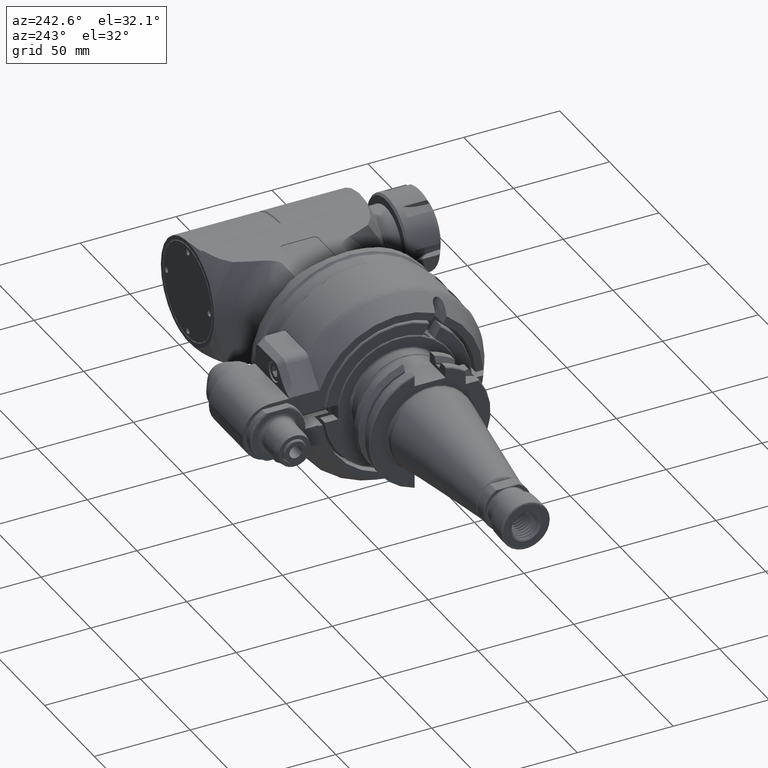
[diagram: clean part render]
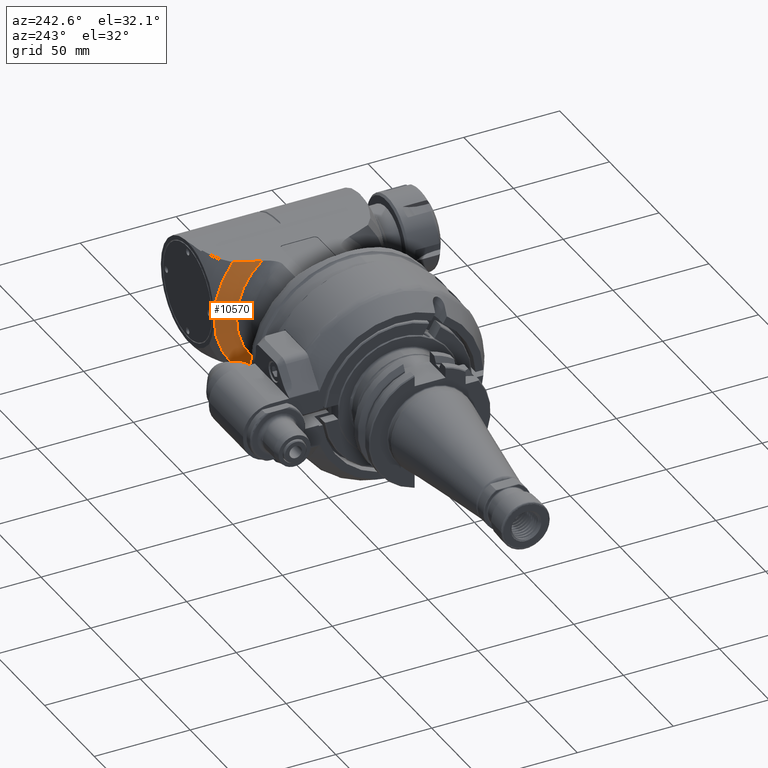
[diagram: same view with one face highlighted and labeled with its STEP entity id]
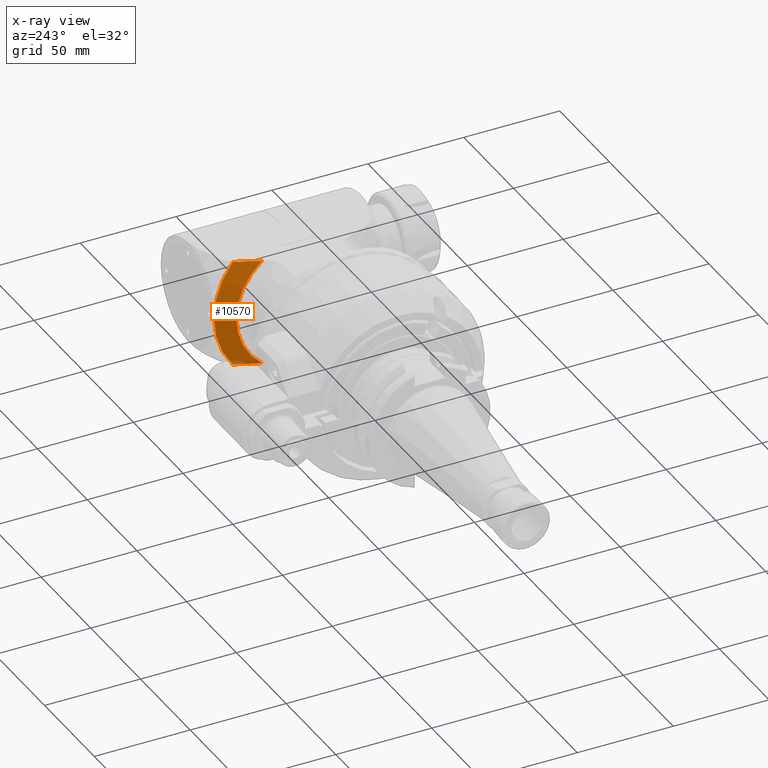
[diagram: x-ray of the same camera — body ghosted, the highlighted face saturated]
A machine part, auxiliary view. The second image highlights one B-rep face of the part: STEP entity #10570.
The next image is the same camera in x-ray: the body ghosted, the highlighted face saturated — about 3% of this face is hidden behind the body in this view.
In plain terms, the highlighted conical surface has half-angle 60 deg.
Its self-contained STEP definition (entity closure, byte-faithful):
#343=(
BOUNDED_CURVE()
B_SPLINE_CURVE(2,(#55237,#55238,#55239),.UNSPECIFIED.,.F.,.F.)
B_SPLINE_CURVE_WITH_KNOTS((3,3),(11.1418606523245,12.5466422600916),
 .UNSPECIFIED.)
CURVE()
GEOMETRIC_REPRESENTATION_ITEM()
RATIONAL_B_SPLINE_CURVE((1.58677165235107,1.50405038971858,1.39114226877562))
REPRESENTATION_ITEM('')
);
#361=(
BOUNDED_CURVE()
B_SPLINE_CURVE(2,(#55623,#55624,#55625),.UNSPECIFIED.,.F.,.F.)
B_SPLINE_CURVE_WITH_KNOTS((3,3),(-3.54863226084856,-2.12423992536637),
 .UNSPECIFIED.)
CURVE()
GEOMETRIC_REPRESENTATION_ITEM()
RATIONAL_B_SPLINE_CURVE((1.60728382094121,1.52349322203514,1.40912553984427))
REPRESENTATION_ITEM('')
);
#752=CONICAL_SURFACE('',#11577,40.5,1.0471975511966);
#1248=FACE_OUTER_BOUND('',#1934,.T.);
#1934=EDGE_LOOP('',(#9148,#9149,#9150,#9151,#9152));
#2480=CIRCLE('',#11576,36.);
#2481=CIRCLE('',#11578,45.);
#2482=CIRCLE('',#11579,45.);
#4902=VERTEX_POINT('',#55232);
#4903=VERTEX_POINT('',#55236);
#4945=VERTEX_POINT('',#55523);
#4962=VERTEX_POINT('',#55607);
#4963=VERTEX_POINT('',#55622);
#6319=EDGE_CURVE('',#4903,#4902,#343,.T.);
#6396=EDGE_CURVE('',#4962,#4963,#361,.T.);
#6424=EDGE_CURVE('',#4903,#4962,#2480,.T.);
#6425=EDGE_CURVE('',#4902,#4945,#2481,.T.);
#6426=EDGE_CURVE('',#4945,#4963,#2482,.T.);
#9148=ORIENTED_EDGE('',*,*,#6424,.F.);
#9149=ORIENTED_EDGE('',*,*,#6319,.T.);
#9150=ORIENTED_EDGE('',*,*,#6425,.T.);
#9151=ORIENTED_EDGE('',*,*,#6426,.T.);
#9152=ORIENTED_EDGE('',*,*,#6396,.F.);
#10570=ADVANCED_FACE('',(#1248),#752,.T.);
#11576=AXIS2_PLACEMENT_3D('',#55742,#13974,#13975);
#11577=AXIS2_PLACEMENT_3D('',#55743,#13976,#13977);
#11578=AXIS2_PLACEMENT_3D('',#55744,#13978,#13979);
#11579=AXIS2_PLACEMENT_3D('',#55745,#13980,#13981);
#13974=DIRECTION('center_axis',(-1.,0.,0.));
#13975=DIRECTION('ref_axis',(0.,0.628539361054693,0.777777777777791));
#13976=DIRECTION('center_axis',(1.,0.,0.));
#13977=DIRECTION('ref_axis',(0.,1.,0.));
#13978=DIRECTION('center_axis',(-1.,0.,0.));
#13979=DIRECTION('ref_axis',(0.,0.782840664613806,0.622222222222105));
#13980=DIRECTION('center_axis',(-1.,0.,0.));
#13981=DIRECTION('ref_axis',(0.,1.,0.));
#55232=CARTESIAN_POINT('',(63.5055535658784,35.2278300211639,27.9999999663396));
#55236=CARTESIAN_POINT('',(58.30940107676,22.62741699797,28.));
#55237=CARTESIAN_POINT('Ctrl Pts',(58.3094010767572,22.627416997971,28.));
#55238=CARTESIAN_POINT('Ctrl Pts',(60.3416369571526,28.2276005599083,28.));
#55239=CARTESIAN_POINT('Ctrl Pts',(63.5055535533533,35.2278300268497,28.));
#55523=CARTESIAN_POINT('',(63.50555349947,45.,3.159589618233E-14));
#55607=CARTESIAN_POINT('',(58.30940107676,22.62741699797,-28.));
#55622=CARTESIAN_POINT('',(63.5055535659185,35.2278300212323,-27.9999999663193));
#55623=CARTESIAN_POINT('Ctrl Pts',(58.3094010767572,22.627416997971,-28.));
#55624=CARTESIAN_POINT('Ctrl Pts',(60.3416369571628,28.2276005599363,-28.));
#55625=CARTESIAN_POINT('Ctrl Pts',(63.5055535533858,35.2278300269216,-28.));
#55742=CARTESIAN_POINT('Origin',(58.30940107676,0.,0.));
#55743=CARTESIAN_POINT('Origin',(60.90747728811,0.,0.));
#55744=CARTESIAN_POINT('Origin',(63.50555349947,0.,0.));
#55745=CARTESIAN_POINT('Origin',(63.50555349947,0.,0.));